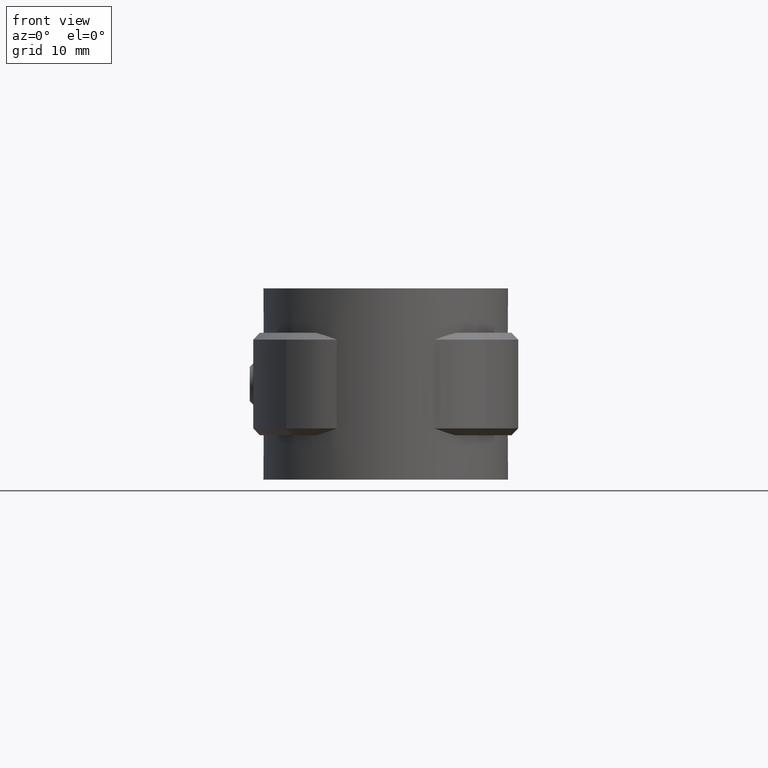
[diagram: clean part render]
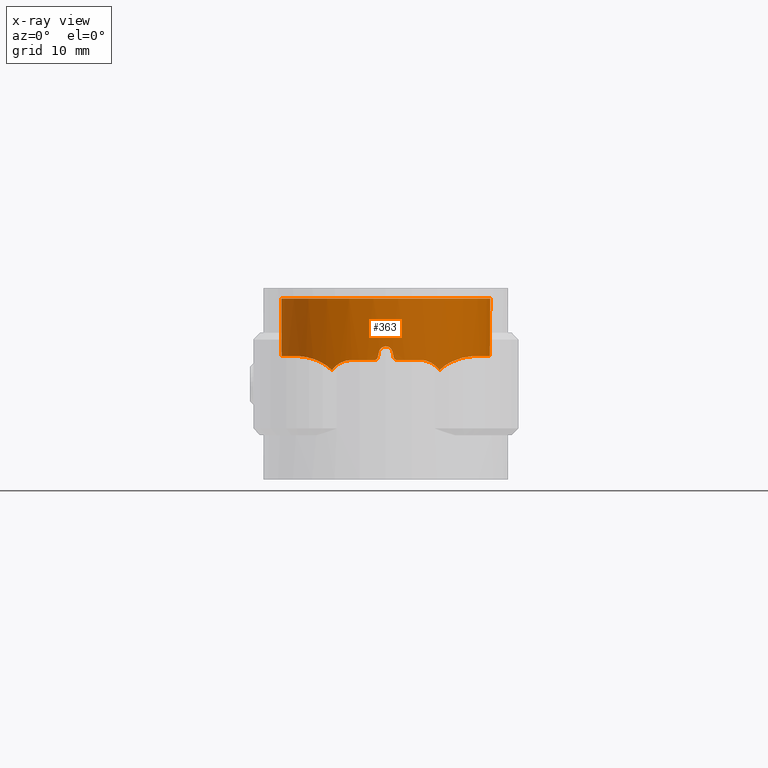
[diagram: x-ray — body ghosted, one internal face saturated and labeled with its STEP entity id]
A machine part, front view, then the same camera in x-ray: the body is ghosted and one INTERNAL B-rep face — a face not visible from any outside direction — is saturated and labeled: STEP entity #363.
In plain terms, the highlighted cylindrical surface (partial cylindrical patch) has radius 15.3 mm, axis along (0, 0, -1).
Its self-contained STEP definition (entity closure, byte-faithful):
#363 = ADVANCED_FACE( '', ( #689 ), #690, .T. );
#689 = FACE_OUTER_BOUND( '', #1386, .T. );
#690 = CYLINDRICAL_SURFACE( '', #1387, 15.3000000000000 );
#1386 = EDGE_LOOP( '', ( #2599, #2600, #2601, #2602, #2603, #2604, #2605, #2606, #2607, #2608, #2609, #2610, #2611, #2612, #2613, #2614 ) );
#1387 = AXIS2_PLACEMENT_3D( '', #2615, #2616, #2617 );
#2599 = ORIENTED_EDGE( '', *, *, #5970, .F. );
#2600 = ORIENTED_EDGE( '', *, *, #5971, .F. );
#2601 = ORIENTED_EDGE( '', *, *, #5972, .F. );
#2602 = ORIENTED_EDGE( '', *, *, #5973, .F. );
#2603 = ORIENTED_EDGE( '', *, *, #5974, .F. );
#2604 = ORIENTED_EDGE( '', *, *, #5975, .T. );
#2605 = ORIENTED_EDGE( '', *, *, #5976, .F. );
#2606 = ORIENTED_EDGE( '', *, *, #5977, .F. );
#2607 = ORIENTED_EDGE( '', *, *, #5978, .F. );
#2608 = ORIENTED_EDGE( '', *, *, #5979, .F. );
#2609 = ORIENTED_EDGE( '', *, *, #5980, .F. );
#2610 = ORIENTED_EDGE( '', *, *, #5981, .F. );
#2611 = ORIENTED_EDGE( '', *, *, #5982, .F. );
#2612 = ORIENTED_EDGE( '', *, *, #5983, .F. );
#2613 = ORIENTED_EDGE( '', *, *, #5984, .F. );
#2614 = ORIENTED_EDGE( '', *, *, #5985, .F. );
#2615 = CARTESIAN_POINT( '', ( 0.000000000000000, 0.000000000000000, 0.000000000000000 ) );
#2616 = DIRECTION( '', ( 0.000000000000000, 0.000000000000000, -1.00000000000000 ) );
#2617 = DIRECTION( '', ( 1.00000000000000, -6.12303176911189E-017, 0.000000000000000 ) );
#5970 = EDGE_CURVE( '', #6879, #6880, #6881, .T. );
#5971 = EDGE_CURVE( '', #6882, #6879, #6883, .T. );
#5972 = EDGE_CURVE( '', #6884, #6882, #6885, .T. );
#5973 = EDGE_CURVE( '', #6886, #6884, #6887, .T. );
#5974 = EDGE_CURVE( '', #6888, #6886, #6889, .T. );
#5975 = EDGE_CURVE( '', #6888, #6890, #6891, .T. );
#5976 = EDGE_CURVE( '', #6892, #6890, #6893, .T. );
#5977 = EDGE_CURVE( '', #6894, #6892, #6895, .T. );
#5978 = EDGE_CURVE( '', #6896, #6894, #6897, .T. );
#5979 = EDGE_CURVE( '', #6898, #6896, #6899, .T. );
#5980 = EDGE_CURVE( '', #6900, #6898, #6901, .T. );
#5981 = EDGE_CURVE( '', #6902, #6900, #6903, .T. );
#5982 = EDGE_CURVE( '', #6904, #6902, #6905, .T. );
#5983 = EDGE_CURVE( '', #6906, #6904, #6907, .T. );
#5984 = EDGE_CURVE( '', #6908, #6906, #6909, .T. );
#5985 = EDGE_CURVE( '', #6880, #6908, #6910, .T. );
#6879 = VERTEX_POINT( '', #8393 );
#6880 = VERTEX_POINT( '', #8394 );
#6881 = B_SPLINE_CURVE_WITH_KNOTS( '', 3, ( #8395, #8396, #8397, #8398, #8399, #8400, #8401, #8402, #8403, #8404 ), .UNSPECIFIED., .F., .F., ( 4, 2, 2, 2, 4 ), ( 3.13586956447804E-016, 0.000900885726990970, 0.00180177145398163, 0.00270265718097228, 0.00360354290796294 ), .UNSPECIFIED. );
#6882 = VERTEX_POINT( '', #8405 );
#6883 = B_SPLINE_CURVE_WITH_KNOTS( '', 3, ( #8406, #8407, #8408, #8409, #8410, #8411, #8412, #8413, #8414, #8415, #8416, #8417 ), .UNSPECIFIED., .F., .F., ( 4, 2, 2, 2, 2, 4 ), ( 0.000000000000000, 0.00173480708891775, 0.00346961417783549, 0.00433701772229437, 0.00520442126675325, 0.00693922835567100 ), .UNSPECIFIED. );
#6884 = VERTEX_POINT( '', #8418 );
#6885 = B_SPLINE_CURVE_WITH_KNOTS( '', 3, ( #8419, #8420, #8421, #8422, #8423, #8424, #8425, #8426, #8427, #8428, #8429, #8430, #8431, #8432, #8433, #8434, #8435, #8436, #8437, #8438, #8439, #8440, #8441, #8442 ), .UNSPECIFIED., .F., .F., ( 4, 2, 2, 2, 2, 2, 2, 2, 2, 2, 2, 4 ), ( 0.000000000000000, 0.00337849067238586, 0.00506773600857879, 0.00675698134477171, 0.00844622668096464, 0.0101354720171576, 0.0135139626895434, 0.0152032080257364, 0.0168924533619293, 0.0202709440343151, 0.0236494347067010, 0.0270279253790868 ), .UNSPECIFIED. );
#6886 = VERTEX_POINT( '', #8443 );
#6887 = LINE( '', #8444, #8445 );
#6888 = VERTEX_POINT( '', #8446 );
#6889 = CIRCLE( '', #8447, 15.3000000000000 );
#6890 = VERTEX_POINT( '', #8448 );
#6891 = LINE( '', #8449, #8450 );
#6892 = VERTEX_POINT( '', #8451 );
#6893 = B_SPLINE_CURVE_WITH_KNOTS( '', 3, ( #8452, #8453, #8454, #8455, #8456, #8457, #8458, #8459, #8460, #8461, #8462, #8463, #8464, #8465, #8466, #8467, #8468, #8469, #8470, #8471, #8472, #8473, #8474, #8475 ), .UNSPECIFIED., .F., .F., ( 4, 2, 2, 2, 2, 2, 2, 2, 2, 2, 2, 4 ), ( 0.000000000000000, 0.00337848974913548, 0.00506773462370322, 0.00675697949827097, 0.00844622437283871, 0.0101354692474065, 0.0135139589965419, 0.0152032038711097, 0.0168924487456774, 0.0202709384948129, 0.0236494282439484, 0.0270279179930839 ), .UNSPECIFIED. );
#6894 = VERTEX_POINT( '', #8476 );
#6895 = B_SPLINE_CURVE_WITH_KNOTS( '', 3, ( #8477, #8478, #8479, #8480, #8481, #8482, #8483, #8484, #8485, #8486, #8487, #8488, #8489, #8490, #8491, #8492 ), .UNSPECIFIED., .F., .F., ( 4, 2, 2, 2, 2, 2, 2, 4 ), ( 0.000000000000000, 0.000872914016519953, 0.00174582803303991, 0.00261874204955986, 0.00349165606607981, 0.00436457008259976, 0.00523748409911972, 0.00698331213215963 ), .UNSPECIFIED. );
#6896 = VERTEX_POINT( '', #8493 );
#6897 = B_SPLINE_CURVE_WITH_KNOTS( '', 3, ( #8494, #8495, #8496, #8497, #8498, #8499, #8500, #8501, #8502, #8503 ), .UNSPECIFIED., .F., .F., ( 4, 2, 2, 2, 4 ), ( 4.67088590647017E-018, 0.000900864509549203, 0.00180172901909840, 0.00270259352864760, 0.00360345803819680 ), .UNSPECIFIED. );
#6898 = VERTEX_POINT( '', #8504 );
#6899 = CIRCLE( '', #8505, 15.3000000000000 );
#6900 = VERTEX_POINT( '', #8506 );
#6901 = B_SPLINE_CURVE_WITH_KNOTS( '', 3, ( #8507, #8508, #8509, #8510, #8511, #8512 ), .UNSPECIFIED., .F., .F., ( 4, 2, 4 ), ( 2.16840434497101E-019, 0.000336655613353340, 0.000673311226706680 ), .UNSPECIFIED. );
#6902 = VERTEX_POINT( '', #8513 );
#6903 = ELLIPSE( '', #8514, 69.7000711111877, 15.3000000000000 );
#6904 = VERTEX_POINT( '', #8515 );
#6905 = B_SPLINE_CURVE_WITH_KNOTS( '', 3, ( #8516, #8517, #8518, #8519, #8520, #8521, #8522, #8523, #8524, #8525 ), .UNSPECIFIED., .F., .F., ( 4, 2, 2, 2, 4 ), ( 1.81745402302524E-018, 0.000671750243631354, 0.00134350048726271, 0.00201525073089406, 0.00268700097452541 ), .UNSPECIFIED. );
#6906 = VERTEX_POINT( '', #8526 );
#6907 = ELLIPSE( '', #8527, 69.7000355555816, 15.3000000000000 );
#6908 = VERTEX_POINT( '', #8528 );
#6909 = B_SPLINE_CURVE_WITH_KNOTS( '', 3, ( #8529, #8530, #8531, #8532, #8533, #8534 ), .UNSPECIFIED., .F., .F., ( 4, 2, 4 ), ( 5.89869754982740E-018, 0.000336638865399028, 0.000673277730798049 ), .UNSPECIFIED. );
#6910 = CIRCLE( '', #8535, 15.3000000000000 );
#8393 = CARTESIAN_POINT( '', ( 7.87194993485694, -13.1195428359035, -10.4995241636864 ) );
#8394 = CARTESIAN_POINT( '', ( 4.99999999999997, -14.4599446748596, -9.00000000000000 ) );
#8395 = CARTESIAN_POINT( '', ( 7.87194993485715, -13.1195428359033, -10.4995241636866 ) );
#8396 = CARTESIAN_POINT( '', ( 7.70710706974325, -13.2184513723917, -10.2628702400891 ) );
#8397 = CARTESIAN_POINT( '', ( 7.51936762164811, -13.3268833532557, -10.0545275191080 ) );
#8398 = CARTESIAN_POINT( '', ( 7.10097256380919, -13.5544420021188, -9.68691216739862 ) );
#8399 = CARTESIAN_POINT( '', ( 6.86771838668188, -13.6747400828048, -9.52707275819633 ) );
#8400 = CARTESIAN_POINT( '', ( 6.37702478648339, -13.9103424488261, -9.27037601346250 ) );
#8401 = CARTESIAN_POINT( '', ( 6.11728630490065, -14.0270040107362, -9.17111178448586 ) );
#8402 = CARTESIAN_POINT( '', ( 5.56885651894952, -14.2536265674630, -9.03499961048254 ) );
#8403 = CARTESIAN_POINT( '', ( 5.28798777383067, -14.3603634591958, -9.00000000000001 ) );
#8404 = CARTESIAN_POINT( '', ( 4.99999999999999, -14.4599446748596, -9.00000000000000 ) );
#8405 = CARTESIAN_POINT( '', ( 12.6110727878860, -8.66318897050281, -8.45031892622466 ) );
#8406 = CARTESIAN_POINT( '', ( 12.6110727878860, -8.66318897050281, -8.45031892622466 ) );
#8407 = CARTESIAN_POINT( '', ( 12.2788758344718, -9.14677070624523, -8.46550426621804 ) );
#8408 = CARTESIAN_POINT( '', ( 11.9238548471013, -9.60416666142807, -8.51112762149711 ) );
#8409 = CARTESIAN_POINT( '', ( 11.1720869257378, -10.4691358477663, -8.66777667678964 ) );
#8410 = CARTESIAN_POINT( '', ( 10.7753324756050, -10.8766247035371, -8.77919123784911 ) );
#8411 = CARTESIAN_POINT( '', ( 10.1521363631965, -11.4500574665978, -9.01175772916425 ) );
#8412 = CARTESIAN_POINT( '', ( 9.94005622851128, -11.6344502476262, -9.10037760025755 ) );
#8413 = CARTESIAN_POINT( '', ( 9.51689249424466, -11.9830675389670, -9.30064951037688 ) );
#8414 = CARTESIAN_POINT( '', ( 9.30477126306192, -12.1482591165118, -9.41258301335879 ) );
#8415 = CARTESIAN_POINT( '', ( 8.67117645873968, -12.6165197301259, -9.79164853274682 ) );
#8416 = CARTESIAN_POINT( '', ( 8.24676141617455, -12.8946495410040, -10.1027272918592 ) );
#8417 = CARTESIAN_POINT( '', ( 7.87194993485674, -13.1195428359036, -10.4995241636862 ) );
#8418 = CARTESIAN_POINT( '', ( 5.95508982035928, 14.0935057821485, -8.45226729138236 ) );
#8419 = CARTESIAN_POINT( '', ( 5.95508982035928, 14.0935057821485, -8.45226729138236 ) );
#8420 = CARTESIAN_POINT( '', ( 7.00540709996952, 13.6497032367324, -8.45390515077289 ) );
#8421 = CARTESIAN_POINT( '', ( 7.98833917484387, 13.0977071765000, -8.45433456352183 ) );
#8422 = CARTESIAN_POINT( '', ( 9.36474915869101, 12.1123840431278, -8.45230022380101 ) );
#8423 = CARTESIAN_POINT( '', ( 9.80897304357577, 11.7557295501313, -8.45130217704717 ) );
#8424 = CARTESIAN_POINT( '', ( 10.6542534858053, 10.9954541554968, -8.45011867942904 ) );
#8425 = CARTESIAN_POINT( '', ( 11.0522173135953, 10.5950394562952, -8.45024402883690 ) );
#8426 = CARTESIAN_POINT( '', ( 11.8003331836054, 9.75492211057009, -8.45109332326581 ) );
#8427 = CARTESIAN_POINT( '', ( 12.1504813178563, 9.31521621707748, -8.45168265912335 ) );
#8428 = CARTESIAN_POINT( '', ( 12.8027128447681, 8.39630831025687, -8.45228185336800 ) );
#8429 = CARTESIAN_POINT( '', ( 13.1058013748109, 7.91527764298564, -8.45228810635508 ) );
#8430 = CARTESIAN_POINT( '', ( 13.9332426752597, 6.42256552465585, -8.45140198263699 ) );
#8431 = CARTESIAN_POINT( '', ( 14.3656891301544, 5.38385352930454, -8.44980454309735 ) );
#8432 = CARTESIAN_POINT( '', ( 14.8408836696453, 3.76236596523588, -8.45110774447444 ) );
#8433 = CARTESIAN_POINT( '', ( 14.9703352046328, 3.20986824873690, -8.45178080891349 ) );
#8434 = CARTESIAN_POINT( '', ( 15.1675027346726, 2.08831298109672, -8.45256434646518 ) );
#8435 = CARTESIAN_POINT( '', ( 15.2339943467144, 1.52711420599460, -8.45266538063568 ) );
#8436 = CARTESIAN_POINT( '', ( 15.3405272523831, -0.157701726061646, -8.45194690359651 ) );
#8437 = CARTESIAN_POINT( '', ( 15.2886124364511, -1.28348506083065, -8.44984870711150 ) );
#8438 = CARTESIAN_POINT( '', ( 14.9297054039767, -3.53452976842065, -8.45101732554137 ) );
#8439 = CARTESIAN_POINT( '', ( 14.6293632335126, -4.61942105654775, -8.45276188964352 ) );
#8440 = CARTESIAN_POINT( '', ( 13.7956940440721, -6.71089750764228, -8.45205521599976 ) );
#8441 = CARTESIAN_POINT( '', ( 13.2566961461038, -7.72334993527380, -8.44956537244372 ) );
#8442 = CARTESIAN_POINT( '', ( 12.6110727878860, -8.66318897050281, -8.45031892622466 ) );
#8443 = CARTESIAN_POINT( '', ( 5.95508982035929, 14.0935057821485, 0.000000000000000 ) );
#8444 = CARTESIAN_POINT( '', ( 5.95508982035928, 14.0935057821485, 0.000000000000000 ) );
#8445 = VECTOR( '', #11979, 1000.00000000000 );
#8446 = CARTESIAN_POINT( '', ( -5.95508982035929, 14.0935057821485, 0.000000000000000 ) );
#8447 = AXIS2_PLACEMENT_3D( '', #11980, #11981, #11982 );
#8448 = CARTESIAN_POINT( '', ( -5.95508982035929, 14.0935057821485, -8.45226729138234 ) );
#8449 = CARTESIAN_POINT( '', ( -5.95508982035929, 14.0935057821485, 0.000000000000000 ) );
#8450 = VECTOR( '', #11983, 1000.00000000000 );
#8451 = CARTESIAN_POINT( '', ( -12.6110727878860, -8.66318897050281, -8.45031892622466 ) );
#8452 = CARTESIAN_POINT( '', ( -12.6110727878860, -8.66318897050281, -8.45031892622466 ) );
#8453 = CARTESIAN_POINT( '', ( -13.2566959368118, -7.72335023994182, -8.44956537268800 ) );
#8454 = CARTESIAN_POINT( '', ( -13.7872519999963, -6.72868324598036, -8.45203498790223 ) );
#8455 = CARTESIAN_POINT( '', ( -14.4157629811428, -5.15695177944743, -8.45258721794598 ) );
#8456 = CARTESIAN_POINT( '', ( -14.5977817794948, -4.61713079014229, -8.45237562317453 ) );
#8457 = CARTESIAN_POINT( '', ( -14.9001468151511, -3.52118651905474, -8.45143865004646 ) );
#8458 = CARTESIAN_POINT( '', ( -15.0196155399717, -2.96943056561901, -8.45072674235893 ) );
#8459 = CARTESIAN_POINT( '', ( -15.1971057085317, -1.85858734965745, -8.45014450833673 ) );
#8460 = CARTESIAN_POINT( '', ( -15.2551221059123, -1.29949949571398, -8.45053515373791 ) );
#8461 = CARTESIAN_POINT( '', ( -15.3093824020463, -0.173953653516129, -8.45159166864485 ) );
#8462 = CARTESIAN_POINT( '', ( -15.3054876661238, 0.394585777385050, -8.45218127623430 ) );
#8463 = CARTESIAN_POINT( '', ( -15.1981365292448, 2.09791529208462, -8.45291107734748 ) );
#8464 = CARTESIAN_POINT( '', ( -15.0026932763093, 3.20594681079866, -8.45156493687627 ) );
#8465 = CARTESIAN_POINT( '', ( -14.5292207707281, 4.82793630028559, -8.45024644846661 ) );
#8466 = CARTESIAN_POINT( '', ( -14.3405455744282, 5.36310958643269, -8.45027416187243 ) );
#8467 = CARTESIAN_POINT( '', ( -13.9022635465869, 6.41414531247766, -8.45111113771658 ) );
#8468 = CARTESIAN_POINT( '', ( -13.6558614780494, 6.92272416588369, -8.45169797640165 ) );
#8469 = CARTESIAN_POINT( '', ( -12.8377048184716, 8.39940386766398, -8.45257732633628 ) );
#8470 = CARTESIAN_POINT( '', ( -12.1873217869345, 9.31977448680834, -8.45153540932947 ) );
#8471 = CARTESIAN_POINT( '', ( -10.6719581828801, 11.0226275164369, -8.44980959461244 ) );
#8472 = CARTESIAN_POINT( '', ( -9.83433755861949, 11.7746813443322, -8.45159435834309 ) );
#8473 = CARTESIAN_POINT( '', ( -8.00503165778895, 13.0872756574940, -8.45432152731596 ) );
#8474 = CARTESIAN_POINT( '', ( -7.00540523774509, 13.6497040235993, -8.45390514786894 ) );
#8475 = CARTESIAN_POINT( '', ( -5.95508982035929, 14.0935057821485, -8.45226729138236 ) );
#8476 = CARTESIAN_POINT( '', ( -7.87194993485689, -13.1195428359035, -10.4995241636861 ) );
#8477 = CARTESIAN_POINT( '', ( -7.87194993485688, -13.1195428359035, -10.4995241636861 ) );
#8478 = CARTESIAN_POINT( '', ( -8.05939537814651, -13.0070723661967, -10.3010836962969 ) );
#8479 = CARTESIAN_POINT( '', ( -8.25746507767268, -12.8827038107875, -10.1266583800327 ) );
#8480 = CARTESIAN_POINT( '', ( -8.66490758756174, -12.6122624252938, -9.81119537813222 ) );
#8481 = CARTESIAN_POINT( '', ( -8.87441539982930, -12.4661368171058, -9.67037758277428 ) );
#8482 = CARTESIAN_POINT( '', ( -9.29956873942730, -12.1522770332228, -9.41538305051103 ) );
#8483 = CARTESIAN_POINT( '', ( -9.51309261095430, -11.9860556200446, -9.30262256282512 ) );
#8484 = CARTESIAN_POINT( '', ( -9.93444728538541, -11.6392103462948, -9.10286134638045 ) );
#8485 = CARTESIAN_POINT( '', ( -10.1431055978119, -11.4579871911045, -9.01546695239504 ) );
#8486 = CARTESIAN_POINT( '', ( -10.5546748924818, -11.0800225430228, -8.86121552436673 ) );
#8487 = CARTESIAN_POINT( '', ( -10.7575951567851, -10.8832808653199, -8.79438198139237 ) );
#8488 = CARTESIAN_POINT( '', ( -11.1564807650936, -10.4739960324997, -8.67888545692043 ) );
#8489 = CARTESIAN_POINT( '', ( -11.3529232679605, -10.2608434184701, -8.63022992225566 ) );
#8490 = CARTESIAN_POINT( '', ( -11.9228597301939, -9.60575418175794, -8.51107055033212 ) );
#8491 = CARTESIAN_POINT( '', ( -12.2792982932485, -9.14615572965859, -8.46548495484239 ) );
#8492 = CARTESIAN_POINT( '', ( -12.6110727878860, -8.66318897050281, -8.45031892622466 ) );
#8493 = CARTESIAN_POINT( '', ( -5.00000000000004, -14.4599446748596, -9.00000000000000 ) );
#8494 = CARTESIAN_POINT( '', ( -5.00000000000004, -14.4599446748596, -9.00000000000000 ) );
#8495 = CARTESIAN_POINT( '', ( -5.28808184441337, -14.3603309312074, -9.00000000000000 ) );
#8496 = CARTESIAN_POINT( '', ( -5.56723513784180, -14.2541891279682, -9.03500257347791 ) );
#8497 = CARTESIAN_POINT( '', ( -6.10941625207096, -14.0303616430525, -9.16876022372331 ) );
#8498 = CARTESIAN_POINT( '', ( -6.37443029805195, -13.9115336754072, -9.26926948772167 ) );
#8499 = CARTESIAN_POINT( '', ( -6.86536044840710, -13.6759261748577, -9.52559103607324 ) );
#8500 = CARTESIAN_POINT( '', ( -7.09462436520735, -13.5578200662850, -9.68185526001337 ) );
#8501 = CARTESIAN_POINT( '', ( -7.51847136578739, -13.3274441718954, -10.0532280477037 ) );
#8502 = CARTESIAN_POINT( '', ( -7.70718302556167, -13.2184057976024, -10.2629792847992 ) );
#8503 = CARTESIAN_POINT( '', ( -7.87194993485689, -13.1195428359035, -10.4995241636861 ) );
#8504 = CARTESIAN_POINT( '', ( -1.65000000000003, -15.2107692113187, -8.99999999999997 ) );
#8505 = AXIS2_PLACEMENT_3D( '', #11984, #11985, #11986 );
#8506 = CARTESIAN_POINT( '', ( -1.16219512100915, -15.2557957019850, -8.60975609337373 ) );
#8507 = CARTESIAN_POINT( '', ( -1.16219512100915, -15.2557957019850, -8.60975609337373 ) );
#8508 = CARTESIAN_POINT( '', ( -1.18718019133930, -15.2538923252354, -8.72080085484746 ) );
#8509 = CARTESIAN_POINT( '', ( -1.24937339150256, -15.2491638273020, -8.81997356472241 ) );
#8510 = CARTESIAN_POINT( '', ( -1.42680663648855, -15.2335863842157, -8.96159450174561 ) );
#8511 = CARTESIAN_POINT( '', ( -1.53684210786510, -15.2230441015250, -8.99999999999994 ) );
#8512 = CARTESIAN_POINT( '', ( -1.65000000000003, -15.2107692113187, -8.99999999999994 ) );
#8513 = CARTESIAN_POINT( '', ( -0.975610000000025, -15.2688632559173, -7.78048800000004 ) );
#8514 = AXIS2_PLACEMENT_3D( '', #11987, #11988, #11989 );
#8515 = CARTESIAN_POINT( '', ( 0.975609757981813, -15.2688632713811, -7.78048781325256 ) );
#8516 = CARTESIAN_POINT( '', ( 0.975609757981811, -15.2688632713811, -7.78048781325256 ) );
#8517 = CARTESIAN_POINT( '', ( 0.925753256865696, -15.2720488712600, -7.55890345399290 ) );
#8518 = CARTESIAN_POINT( '', ( 0.801992275849186, -15.2799961721199, -7.36098178575223 ) );
#8519 = CARTESIAN_POINT( '', ( 0.447466370338898, -15.2944842501451, -7.07733552221451 ) );
#8520 = CARTESIAN_POINT( '', ( 0.227143439189080, -15.3000000283266, -6.99999958588353 ) );
#8521 = CARTESIAN_POINT( '', ( -0.227147255240431, -15.2999999716731, -7.00000040725266 ) );
#8522 = CARTESIAN_POINT( '', ( -0.447547321265032, -15.2944813833536, -7.07738605412701 ) );
#8523 = CARTESIAN_POINT( '', ( -0.801987349730737, -15.2799959319822, -7.36099176213694 ) );
#8524 = CARTESIAN_POINT( '', ( -0.925753523622181, -15.2720488550089, -7.55890355263458 ) );
#8525 = CARTESIAN_POINT( '', ( -0.975610000000020, -15.2688632559173, -7.78048800000004 ) );
#8526 = CARTESIAN_POINT( '', ( 1.16219499999999, -15.2557957112035, -8.60975599999999 ) );
#8527 = AXIS2_PLACEMENT_3D( '', #11990, #11991, #11992 );
#8528 = CARTESIAN_POINT( '', ( 1.64999999999995, -15.2107692113187, -8.99999999999997 ) );
#8529 = CARTESIAN_POINT( '', ( 1.64999999999995, -15.2107692113187, -8.99999999999995 ) );
#8530 = CARTESIAN_POINT( '', ( 1.53684205018555, -15.2230441077818, -9.00000000048562 ) );
#8531 = CARTESIAN_POINT( '', ( 1.42680454084002, -15.2335865225725, -8.96158994493370 ) );
#8532 = CARTESIAN_POINT( '', ( 1.24939104558132, -15.2491623230159, -8.81999061126030 ) );
#8533 = CARTESIAN_POINT( '', ( 1.18718009144230, -15.2538923330449, -8.72080085308014 ) );
#8534 = CARTESIAN_POINT( '', ( 1.16219499999998, -15.2557957112035, -8.60975599999999 ) );
#8535 = AXIS2_PLACEMENT_3D( '', #11993, #11994, #11995 );
#11979 = DIRECTION( '', ( 0.000000000000000, 0.000000000000000, -1.00000000000000 ) );
#11980 = CARTESIAN_POINT( '', ( 0.000000000000000, 0.000000000000000, 0.000000000000000 ) );
#11981 = DIRECTION( '', ( 0.000000000000000, 0.000000000000000, 1.00000000000000 ) );
#11982 = DIRECTION( '', ( 1.00000000000000, 0.000000000000000, 0.000000000000000 ) );
#11983 = DIRECTION( '', ( 0.000000000000000, 0.000000000000000, -1.00000000000000 ) );
#11984 = CARTESIAN_POINT( '', ( 0.000000000000000, 0.000000000000000, -9.00000000000001 ) );
#11985 = DIRECTION( '', ( 6.12303176911189E-017, -3.05720745347993E-016, -1.00000000000000 ) );
#11986 = DIRECTION( '', ( 0.000000000000000, 1.00000000000000, -3.05720745347993E-016 ) );
#11987 = CARTESIAN_POINT( '', ( 0.000000000000000, 0.000000000000000, -3.44443890776446 ) );
#11988 = DIRECTION( '', ( 0.975609806487711, -1.18038009681476E-016, -0.219511971165610 ) );
#11989 = DIRECTION( '', ( 0.219511971165610, -2.65585237103421E-017, 0.975609806487711 ) );
#11990 = CARTESIAN_POINT( '', ( 0.000000000000000, 0.000000000000000, -3.44444212055027 ) );
#11991 = DIRECTION( '', ( -0.975609781292647, -1.61807527429124E-017, -0.219512083143762 ) );
#11992 = DIRECTION( '', ( -0.219512083143762, -3.64066741594651E-018, 0.975609781292647 ) );
#11993 = CARTESIAN_POINT( '', ( 0.000000000000000, 0.000000000000000, -9.00000000000001 ) );
#11994 = DIRECTION( '', ( 6.12303176911189E-017, -3.05720745347993E-016, -1.00000000000000 ) );
#11995 = DIRECTION( '', ( 0.000000000000000, 1.00000000000000, -3.05720745347993E-016 ) );